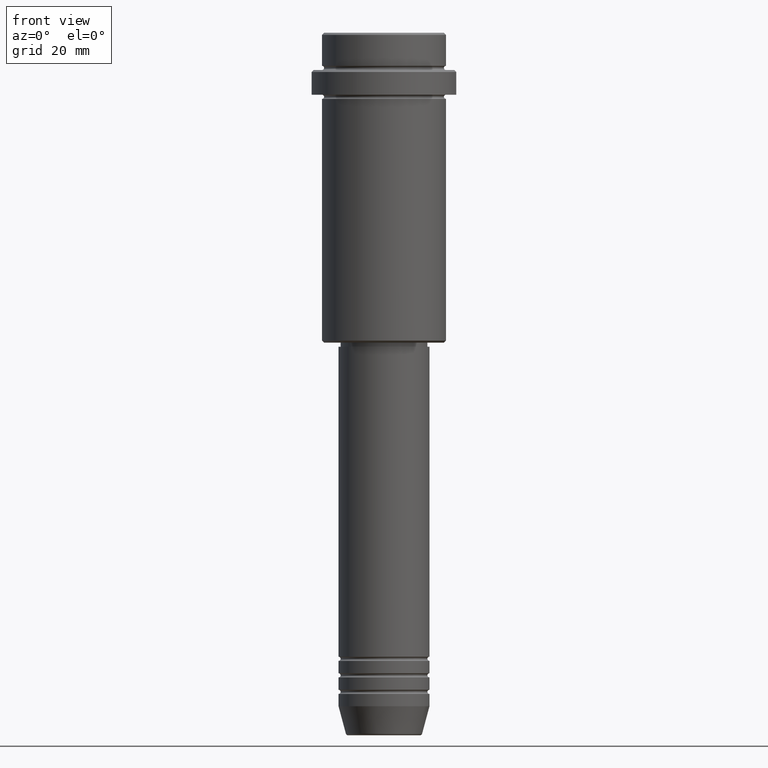
[diagram: clean part render]
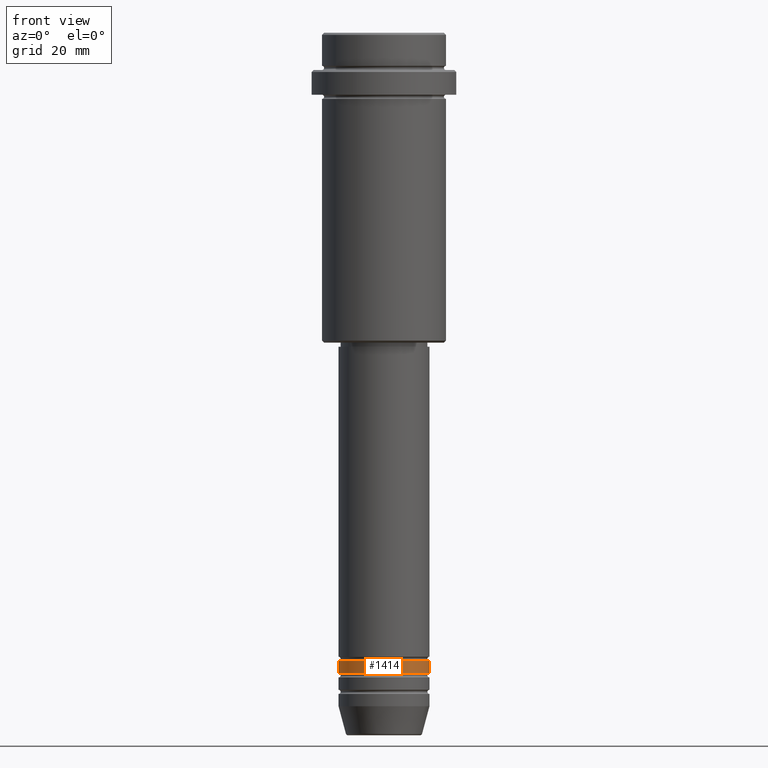
[diagram: same view with one face highlighted and labeled with its STEP entity id]
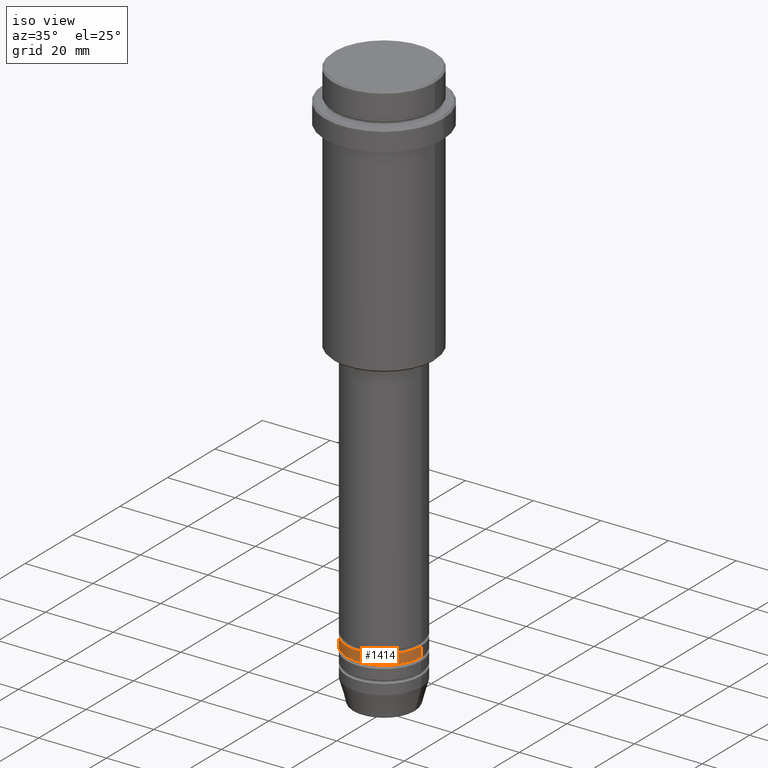
[diagram: same view with one face highlighted and labeled with its STEP entity id]
A machine part, front view. The second image highlights one B-rep face of the part: STEP entity #1414.
A second angle (iso view) of the same face is appended — the face is thin or edge-on in the first view.
In plain terms, the highlighted cylindrical surface (partial cylindrical patch) has radius 11 mm, axis along (-0, -0, 1).
Its self-contained STEP definition (entity closure, byte-faithful):
#18 = AXIS2_PLACEMENT_3D ( 'NONE', #515, #69, #519 ) ;
#61 = EDGE_CURVE ( 'NONE', #939, #1280, #839, .T. ) ;
#69 = DIRECTION ( 'NONE',  ( -0.000000000000000000, -0.000000000000000000, 1.000000000000000000 ) ) ;
#80 = CIRCLE ( 'NONE', #18, 11.00000000000000000 ) ;
#108 = EDGE_CURVE ( 'NONE', #1186, #129, #166, .T. ) ;
#129 = VERTEX_POINT ( 'NONE', #951 ) ;
#135 = AXIS2_PLACEMENT_3D ( 'NONE', #970, #736, #1078 ) ;
#164 = EDGE_CURVE ( 'NONE', #1280, #129, #80, .T. ) ;
#166 = LINE ( 'NONE', #412, #1260 ) ;
#177 = CIRCLE ( 'NONE', #980, 11.00000000000000000 ) ;
#226 = CARTESIAN_POINT ( 'NONE',  ( -11.00000000000000000, 1.347111479062088405E-15, -154.9999999999999147 ) ) ;
#274 = CARTESIAN_POINT ( 'NONE',  ( -11.00000000000000000, 1.347111479062088405E-15, -151.9999999999999147 ) ) ;
#284 = CARTESIAN_POINT ( 'NONE',  ( -11.00000000000000000, 1.347111479062088405E-15, 0.000000000000000000 ) ) ;
#290 = CARTESIAN_POINT ( 'NONE',  ( 11.00000000000000000, 0.000000000000000000, -154.9999999999999147 ) ) ;
#334 = ORIENTED_EDGE ( 'NONE', *, *, #944, .T. ) ;
#412 = CARTESIAN_POINT ( 'NONE',  ( 11.00000000000000000, 0.000000000000000000, 0.000000000000000000 ) ) ;
#503 = EDGE_LOOP ( 'NONE', ( #1407, #334, #1294, #1018 ) ) ;
#515 = CARTESIAN_POINT ( 'NONE',  ( 0.000000000000000000, 0.000000000000000000, -151.9999999999999147 ) ) ;
#519 = DIRECTION ( 'NONE',  ( 1.000000000000000000, 0.000000000000000000, 0.000000000000000000 ) ) ;
#571 = DIRECTION ( 'NONE',  ( -0.000000000000000000, -0.000000000000000000, 1.000000000000000000 ) ) ;
#736 = DIRECTION ( 'NONE',  ( -0.000000000000000000, -0.000000000000000000, 1.000000000000000000 ) ) ;
#761 = DIRECTION ( 'NONE',  ( 1.000000000000000000, 0.000000000000000000, 0.000000000000000000 ) ) ;
#839 = LINE ( 'NONE', #284, #1369 ) ;
#939 = VERTEX_POINT ( 'NONE', #226 ) ;
#944 = EDGE_CURVE ( 'NONE', #939, #1186, #177, .T. ) ;
#951 = CARTESIAN_POINT ( 'NONE',  ( 11.00000000000000000, 0.000000000000000000, -151.9999999999999147 ) ) ;
#970 = CARTESIAN_POINT ( 'NONE',  ( 0.000000000000000000, 0.000000000000000000, 0.000000000000000000 ) ) ;
#980 = AXIS2_PLACEMENT_3D ( 'NONE', #1203, #571, #761 ) ;
#1018 = ORIENTED_EDGE ( 'NONE', *, *, #164, .F. ) ;
#1078 = DIRECTION ( 'NONE',  ( 1.000000000000000000, 0.000000000000000000, 0.000000000000000000 ) ) ;
#1162 = CYLINDRICAL_SURFACE ( 'NONE', #135, 11.00000000000000000 ) ;
#1186 = VERTEX_POINT ( 'NONE', #290 ) ;
#1203 = CARTESIAN_POINT ( 'NONE',  ( 0.000000000000000000, 0.000000000000000000, -154.9999999999999147 ) ) ;
#1260 = VECTOR ( 'NONE', #1371, 1000.000000000000000 ) ;
#1280 = VERTEX_POINT ( 'NONE', #274 ) ;
#1294 = ORIENTED_EDGE ( 'NONE', *, *, #108, .T. ) ;
#1369 = VECTOR ( 'NONE', #1377, 1000.000000000000000 ) ;
#1371 = DIRECTION ( 'NONE',  ( -0.000000000000000000, -0.000000000000000000, 1.000000000000000000 ) ) ;
#1377 = DIRECTION ( 'NONE',  ( -0.000000000000000000, -0.000000000000000000, 1.000000000000000000 ) ) ;
#1384 = FACE_OUTER_BOUND ( 'NONE', #503, .T. ) ;
#1407 = ORIENTED_EDGE ( 'NONE', *, *, #61, .F. ) ;
#1414 = ADVANCED_FACE ( 'NONE', ( #1384 ), #1162, .T. ) ;